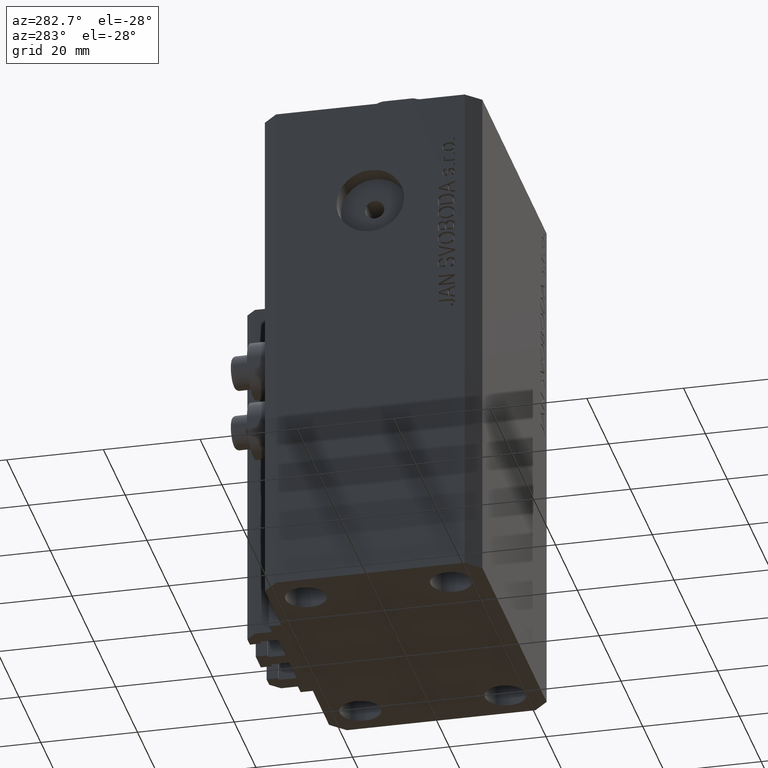
[diagram: clean part render]
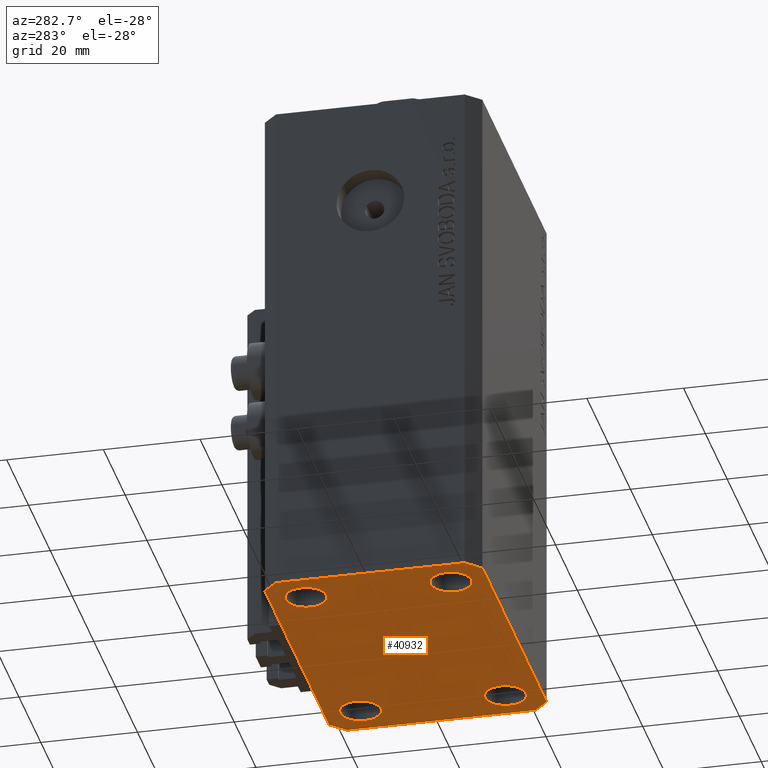
[diagram: same view with one face highlighted and labeled with its STEP entity id]
A machine part, auxiliary view. The second image highlights one B-rep face of the part: STEP entity #40932.
In plain terms, the highlighted planar face has unit normal (0, 0, 1).
Its self-contained STEP definition (entity closure, byte-faithful):
#75 = CARTESIAN_POINT ( 'NONE',  ( -29.49999999999650413, 22.49999999999949907, -107.0000000000000000 ) ) ;
#610 = CIRCLE ( 'NONE', #36431, 4.250000000021375790 ) ;
#1006 = EDGE_CURVE ( 'NONE', #34519, #28430, #6546, .T. ) ;
#2161 = LINE ( 'NONE', #38190, #25781 ) ;
#2178 = ORIENTED_EDGE ( 'NONE', *, *, #31753, .F. ) ;
#2441 = CARTESIAN_POINT ( 'NONE',  ( -20.74999999997862687, 14.99999999999999645, -107.0000000000000000 ) ) ;
#2523 = CARTESIAN_POINT ( 'NONE',  ( -32.49999999999650413, 19.49999999999949907, -107.0000000000000000 ) ) ;
#2903 = VECTOR ( 'NONE', #36269, 1000.000000000000114 ) ;
#3202 = DIRECTION ( 'NONE',  ( 1.000000000000000000, 0.000000000000000000, 0.000000000000000000 ) ) ;
#3278 = CIRCLE ( 'NONE', #43704, 4.249999999957291053 ) ;
#3372 = DIRECTION ( 'NONE',  ( -0.000000000000000000, -0.000000000000000000, -1.000000000000000000 ) ) ;
#3421 = LINE ( 'NONE', #3664, #13453 ) ;
#3525 = FACE_BOUND ( 'NONE', #10054, .T. ) ;
#3664 = CARTESIAN_POINT ( 'NONE',  ( 32.49999999999651124, -19.49999999999949196, -107.0000000000000000 ) ) ;
#4722 = DIRECTION ( 'NONE',  ( -0.7071067811865344721, 0.7071067811865606734, 0.000000000000000000 ) ) ;
#4800 = CARTESIAN_POINT ( 'NONE',  ( -29.25000000002137668, 14.99999999999999645, -107.0000000000000000 ) ) ;
#5074 = ORIENTED_EDGE ( 'NONE', *, *, #21514, .F. ) ;
#5168 = EDGE_LOOP ( 'NONE', ( #26099, #44936 ) ) ;
#5426 = ORIENTED_EDGE ( 'NONE', *, *, #7938, .F. ) ;
#5930 = DIRECTION ( 'NONE',  ( 1.000000000000000000, 0.000000000000000000, 0.000000000000000000 ) ) ;
#5940 = AXIS2_PLACEMENT_3D ( 'NONE', #36462, #39331, #18070 ) ;
#6127 = CARTESIAN_POINT ( 'NONE',  ( -29.25000000004036593, -15.00000000000000355, -107.0000000000000000 ) ) ;
#6160 = EDGE_CURVE ( 'NONE', #47157, #46733, #39850, .T. ) ;
#6546 = CIRCLE ( 'NONE', #33222, 4.250000000021375790 ) ;
#6586 = EDGE_CURVE ( 'NONE', #38617, #47157, #31364, .T. ) ;
#7143 = VERTEX_POINT ( 'NONE', #10683 ) ;
#7150 = CARTESIAN_POINT ( 'NONE',  ( -32.49999999999650413, -19.49999999999949907, -107.0000000000000000 ) ) ;
#7643 = DIRECTION ( 'NONE',  ( -1.000000000000000000, -3.528251137580330676E-16, 0.000000000000000000 ) ) ;
#7938 = EDGE_CURVE ( 'NONE', #28430, #34519, #610, .T. ) ;
#8310 = LINE ( 'NONE', #37423, #39901 ) ;
#9055 = AXIS2_PLACEMENT_3D ( 'NONE', #29409, #43308, #3202 ) ;
#9332 = CIRCLE ( 'NONE', #30623, 4.249999999976314058 ) ;
#9611 = AXIS2_PLACEMENT_3D ( 'NONE', #31678, #14023, #35752 ) ;
#10054 = EDGE_LOOP ( 'NONE', ( #30267, #23634 ) ) ;
#10203 = FACE_OUTER_BOUND ( 'NONE', #17608, .T. ) ;
#10683 = CARTESIAN_POINT ( 'NONE',  ( -20.74999999995962341, -15.00000000000000355, -107.0000000000000000 ) ) ;
#11154 = FACE_BOUND ( 'NONE', #24197, .T. ) ;
#11280 = EDGE_CURVE ( 'NONE', #7143, #46906, #22767, .T. ) ;
#11982 = CARTESIAN_POINT ( 'NONE',  ( 24.99999999999999289, -15.00000000000000355, -107.0000000000000000 ) ) ;
#12419 = VERTEX_POINT ( 'NONE', #39725 ) ;
#12828 = DIRECTION ( 'NONE',  ( 1.000000000000000000, 0.000000000000000000, 0.000000000000000000 ) ) ;
#13349 = DIRECTION ( 'NONE',  ( 1.000000000000000000, 1.176083712526788232E-16, 0.000000000000000000 ) ) ;
#13407 = LINE ( 'NONE', #30585, #26280 ) ;
#13453 = VECTOR ( 'NONE', #17963, 1000.000000000000000 ) ;
#13995 = EDGE_CURVE ( 'NONE', #46906, #7143, #39636, .T. ) ;
#14023 = DIRECTION ( 'NONE',  ( -0.000000000000000000, -0.000000000000000000, -1.000000000000000000 ) ) ;
#16083 = CARTESIAN_POINT ( 'NONE',  ( -32.49999999999650413, -19.49999999999949907, -107.0000000000000000 ) ) ;
#16742 = DIRECTION ( 'NONE',  ( 0.7071067811865483499, 0.7071067811865466846, 0.000000000000000000 ) ) ;
#16782 = DIRECTION ( 'NONE',  ( 1.000000000000000000, 0.000000000000000000, 0.000000000000000000 ) ) ;
#16895 = CIRCLE ( 'NONE', #18457, 4.249999999976314058 ) ;
#17608 = EDGE_LOOP ( 'NONE', ( #2178, #30500, #20174, #5074, #39394, #24872, #36013, #33166 ) ) ;
#17688 = EDGE_LOOP ( 'NONE', ( #21776, #33634 ) ) ;
#17883 = EDGE_CURVE ( 'NONE', #28012, #38617, #18189, .T. ) ;
#17963 = DIRECTION ( 'NONE',  ( 1.334402673828349134E-14, 1.000000000000000000, 0.000000000000000000 ) ) ;
#18070 = DIRECTION ( 'NONE',  ( 1.000000000000000000, 0.000000000000000000, -0.000000000000000000 ) ) ;
#18189 = LINE ( 'NONE', #75, #39732 ) ;
#18457 = AXIS2_PLACEMENT_3D ( 'NONE', #25717, #21895, #36721 ) ;
#19404 = LINE ( 'NONE', #44967, #30845 ) ;
#19806 = EDGE_CURVE ( 'NONE', #20019, #42058, #16895, .T. ) ;
#20019 = VERTEX_POINT ( 'NONE', #34992 ) ;
#20174 = ORIENTED_EDGE ( 'NONE', *, *, #38927, .F. ) ;
#21514 = EDGE_CURVE ( 'NONE', #42578, #27880, #13407, .T. ) ;
#21641 = VERTEX_POINT ( 'NONE', #42307 ) ;
#21776 = ORIENTED_EDGE ( 'NONE', *, *, #43315, .F. ) ;
#21895 = DIRECTION ( 'NONE',  ( -0.000000000000000000, -0.000000000000000000, -1.000000000000000000 ) ) ;
#22701 = DIRECTION ( 'NONE',  ( -0.000000000000000000, -0.000000000000000000, -1.000000000000000000 ) ) ;
#22767 = CIRCLE ( 'NONE', #9055, 4.250000000040370374 ) ;
#23634 = ORIENTED_EDGE ( 'NONE', *, *, #13995, .F. ) ;
#24197 = EDGE_LOOP ( 'NONE', ( #35513, #5426 ) ) ;
#24733 = PLANE ( 'NONE',  #5940 ) ;
#24872 = ORIENTED_EDGE ( 'NONE', *, *, #6160, .F. ) ;
#24989 = VECTOR ( 'NONE', #31602, 1000.000000000000000 ) ;
#25717 = CARTESIAN_POINT ( 'NONE',  ( 24.99999999999999289, -15.00000000000000355, -107.0000000000000000 ) ) ;
#25781 = VECTOR ( 'NONE', #13349, 1000.000000000000000 ) ;
#26099 = ORIENTED_EDGE ( 'NONE', *, *, #30438, .F. ) ;
#26280 = VECTOR ( 'NONE', #16742, 1000.000000000000000 ) ;
#26519 = DIRECTION ( 'NONE',  ( -0.000000000000000000, -0.000000000000000000, -1.000000000000000000 ) ) ;
#27192 = CARTESIAN_POINT ( 'NONE',  ( 29.49999999999707967, 22.49999999999952038, -107.0000000000000000 ) ) ;
#27827 = CARTESIAN_POINT ( 'NONE',  ( -25.00000000000000000, 14.99999999999999645, -107.0000000000000000 ) ) ;
#27880 = VERTEX_POINT ( 'NONE', #46900 ) ;
#28012 = VERTEX_POINT ( 'NONE', #34184 ) ;
#28034 = CARTESIAN_POINT ( 'NONE',  ( 29.24999999997631051, -15.00000000000000355, -107.0000000000000000 ) ) ;
#28430 = VERTEX_POINT ( 'NONE', #4800 ) ;
#29021 = FACE_BOUND ( 'NONE', #5168, .T. ) ;
#29409 = CARTESIAN_POINT ( 'NONE',  ( -24.99999999999999289, -15.00000000000000355, -107.0000000000000000 ) ) ;
#29854 = CARTESIAN_POINT ( 'NONE',  ( -25.00000000000000000, 14.99999999999999645, -107.0000000000000000 ) ) ;
#30267 = ORIENTED_EDGE ( 'NONE', *, *, #11280, .F. ) ;
#30438 = EDGE_CURVE ( 'NONE', #12419, #21641, #33966, .T. ) ;
#30500 = ORIENTED_EDGE ( 'NONE', *, *, #46824, .F. ) ;
#30585 = CARTESIAN_POINT ( 'NONE',  ( 29.49999999999650413, -22.49999999999949196, -107.0000000000000000 ) ) ;
#30623 = AXIS2_PLACEMENT_3D ( 'NONE', #11982, #26519, #41114 ) ;
#30845 = VECTOR ( 'NONE', #7643, 1000.000000000000000 ) ;
#31206 = AXIS2_PLACEMENT_3D ( 'NONE', #43957, #3372, #16782 ) ;
#31364 = LINE ( 'NONE', #2523, #24989 ) ;
#31602 = DIRECTION ( 'NONE',  ( 0.000000000000000000, -1.000000000000000000, 0.000000000000000000 ) ) ;
#31678 = CARTESIAN_POINT ( 'NONE',  ( 25.00000000000000000, 14.99999999999999289, -107.0000000000000000 ) ) ;
#31753 = EDGE_CURVE ( 'NONE', #37369, #28012, #19404, .T. ) ;
#32974 = DIRECTION ( 'NONE',  ( -0.7071067811865474617, -0.7071067811865474617, 0.000000000000000000 ) ) ;
#33166 = ORIENTED_EDGE ( 'NONE', *, *, #17883, .F. ) ;
#33222 = AXIS2_PLACEMENT_3D ( 'NONE', #27827, #45545, #12828 ) ;
#33587 = CARTESIAN_POINT ( 'NONE',  ( -29.49999999999650413, -22.49999999999949907, -107.0000000000000000 ) ) ;
#33634 = ORIENTED_EDGE ( 'NONE', *, *, #19806, .F. ) ;
#33966 = CIRCLE ( 'NONE', #9611, 4.249999999957291053 ) ;
#34184 = CARTESIAN_POINT ( 'NONE',  ( -29.49999999999650413, 22.49999999999949907, -107.0000000000000000 ) ) ;
#34269 = CARTESIAN_POINT ( 'NONE',  ( -32.49999999999650413, 19.49999999999949907, -107.0000000000000000 ) ) ;
#34519 = VERTEX_POINT ( 'NONE', #2441 ) ;
#34992 = CARTESIAN_POINT ( 'NONE',  ( 20.75000000002367884, -15.00000000000000355, -107.0000000000000000 ) ) ;
#35030 = DIRECTION ( 'NONE',  ( -0.000000000000000000, -0.000000000000000000, -1.000000000000000000 ) ) ;
#35513 = ORIENTED_EDGE ( 'NONE', *, *, #1006, .F. ) ;
#35752 = DIRECTION ( 'NONE',  ( 1.000000000000000000, 0.000000000000000000, 0.000000000000000000 ) ) ;
#36013 = ORIENTED_EDGE ( 'NONE', *, *, #6586, .F. ) ;
#36269 = DIRECTION ( 'NONE',  ( 0.7071067811865474617, -0.7071067811865474617, 0.000000000000000000 ) ) ;
#36431 = AXIS2_PLACEMENT_3D ( 'NONE', #29854, #22701, #41563 ) ;
#36462 = CARTESIAN_POINT ( 'NONE',  ( 0.000000000000000000, 0.000000000000000000, -107.0000000000000000 ) ) ;
#36560 = EDGE_CURVE ( 'NONE', #46733, #42578, #2161, .T. ) ;
#36721 = DIRECTION ( 'NONE',  ( 1.000000000000000000, 0.000000000000000000, 0.000000000000000000 ) ) ;
#37369 = VERTEX_POINT ( 'NONE', #27192 ) ;
#37423 = CARTESIAN_POINT ( 'NONE',  ( 32.49999999999702993, 19.49999999999945999, -107.0000000000000000 ) ) ;
#38190 = CARTESIAN_POINT ( 'NONE',  ( -29.49999999999650413, -22.49999999999949907, -107.0000000000000000 ) ) ;
#38617 = VERTEX_POINT ( 'NONE', #34269 ) ;
#38927 = EDGE_CURVE ( 'NONE', #27880, #43555, #3421, .T. ) ;
#39331 = DIRECTION ( 'NONE',  ( 0.000000000000000000, 0.000000000000000000, 1.000000000000000000 ) ) ;
#39394 = ORIENTED_EDGE ( 'NONE', *, *, #36560, .F. ) ;
#39636 = CIRCLE ( 'NONE', #31206, 4.250000000040370374 ) ;
#39725 = CARTESIAN_POINT ( 'NONE',  ( 29.24999999995729283, 14.99999999999999289, -107.0000000000000000 ) ) ;
#39732 = VECTOR ( 'NONE', #32974, 1000.000000000000114 ) ;
#39850 = LINE ( 'NONE', #7150, #2903 ) ;
#39901 = VECTOR ( 'NONE', #4722, 1000.000000000000000 ) ;
#40932 = ADVANCED_FACE ( 'NONE', ( #3525, #42923, #29021, #11154, #10203 ), #24733, .F. ) ;
#41114 = DIRECTION ( 'NONE',  ( 1.000000000000000000, 0.000000000000000000, 0.000000000000000000 ) ) ;
#41563 = DIRECTION ( 'NONE',  ( 1.000000000000000000, 0.000000000000000000, 0.000000000000000000 ) ) ;
#41979 = CARTESIAN_POINT ( 'NONE',  ( 25.00000000000000000, 14.99999999999999289, -107.0000000000000000 ) ) ;
#42058 = VERTEX_POINT ( 'NONE', #28034 ) ;
#42307 = CARTESIAN_POINT ( 'NONE',  ( 20.75000000004271072, 14.99999999999999289, -107.0000000000000000 ) ) ;
#42578 = VERTEX_POINT ( 'NONE', #44931 ) ;
#42923 = FACE_BOUND ( 'NONE', #17688, .T. ) ;
#43308 = DIRECTION ( 'NONE',  ( -0.000000000000000000, -0.000000000000000000, -1.000000000000000000 ) ) ;
#43315 = EDGE_CURVE ( 'NONE', #42058, #20019, #9332, .T. ) ;
#43555 = VERTEX_POINT ( 'NONE', #44190 ) ;
#43704 = AXIS2_PLACEMENT_3D ( 'NONE', #41979, #35030, #5930 ) ;
#43957 = CARTESIAN_POINT ( 'NONE',  ( -24.99999999999999289, -15.00000000000000355, -107.0000000000000000 ) ) ;
#44190 = CARTESIAN_POINT ( 'NONE',  ( 32.49999999999702993, 19.49999999999945999, -107.0000000000000000 ) ) ;
#44931 = CARTESIAN_POINT ( 'NONE',  ( 29.49999999999650413, -22.49999999999949196, -107.0000000000000000 ) ) ;
#44936 = ORIENTED_EDGE ( 'NONE', *, *, #45268, .F. ) ;
#44967 = CARTESIAN_POINT ( 'NONE',  ( 29.49999999999707967, 22.49999999999952038, -107.0000000000000000 ) ) ;
#45268 = EDGE_CURVE ( 'NONE', #21641, #12419, #3278, .T. ) ;
#45545 = DIRECTION ( 'NONE',  ( -0.000000000000000000, -0.000000000000000000, -1.000000000000000000 ) ) ;
#46733 = VERTEX_POINT ( 'NONE', #33587 ) ;
#46824 = EDGE_CURVE ( 'NONE', #43555, #37369, #8310, .T. ) ;
#46900 = CARTESIAN_POINT ( 'NONE',  ( 32.49999999999651124, -19.49999999999949196, -107.0000000000000000 ) ) ;
#46906 = VERTEX_POINT ( 'NONE', #6127 ) ;
#47157 = VERTEX_POINT ( 'NONE', #16083 ) ;